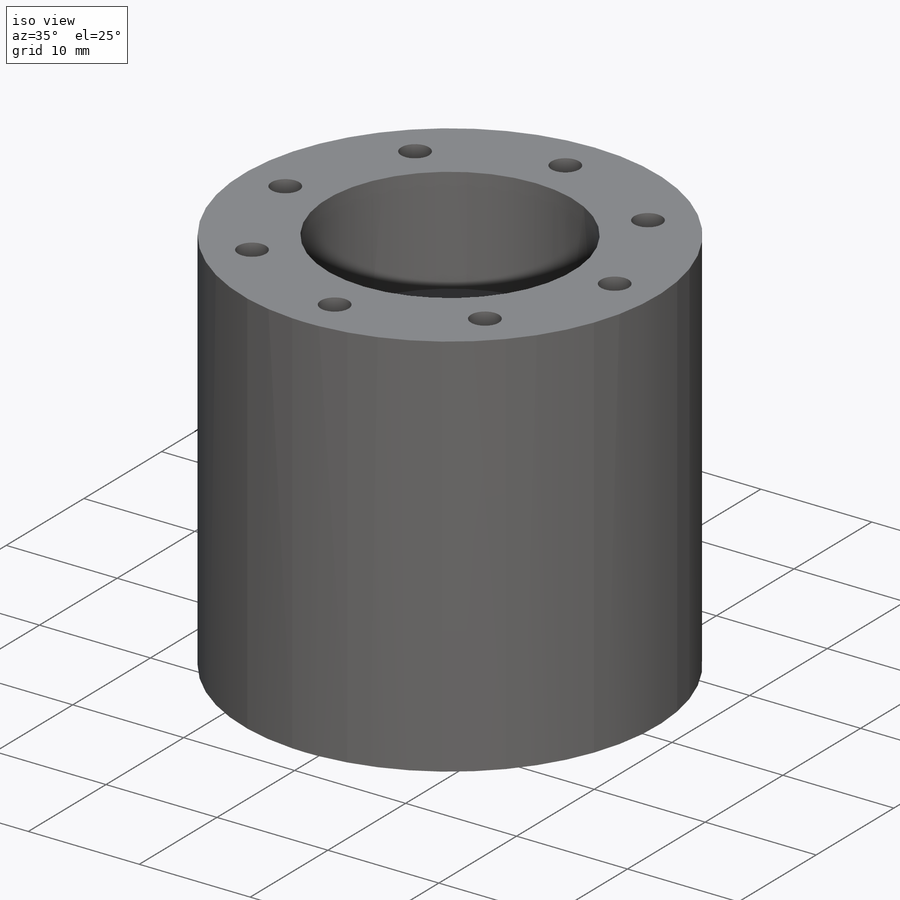
[diagram: iso view]
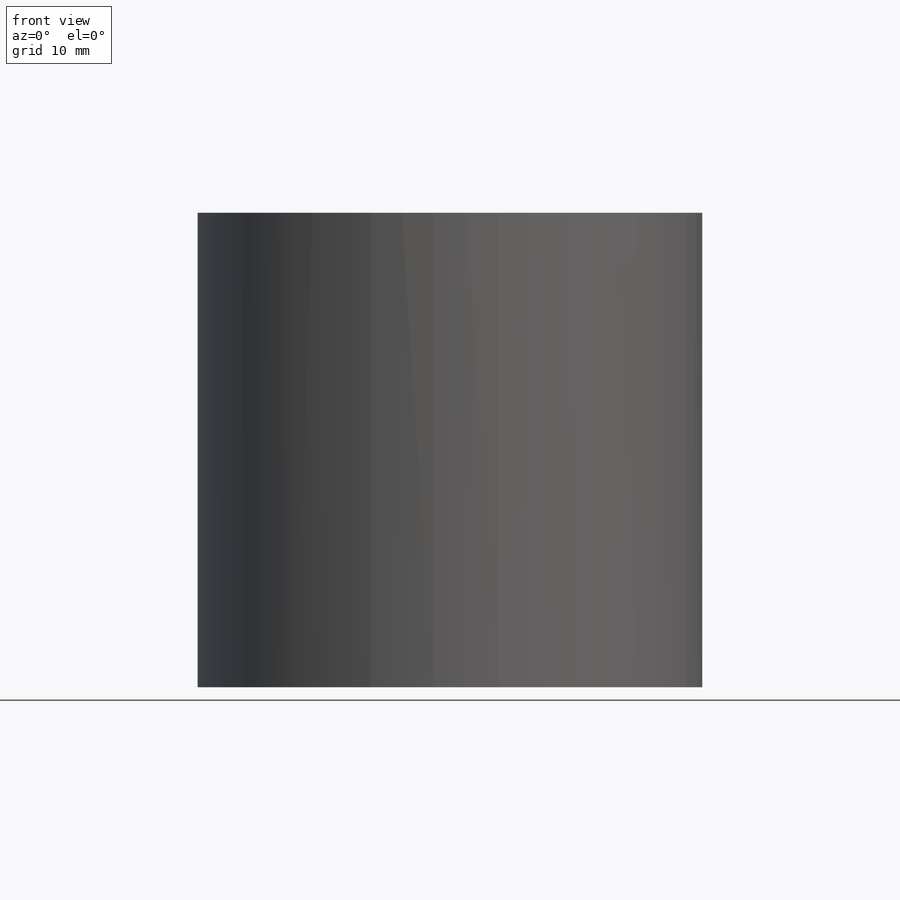
[diagram: front view]
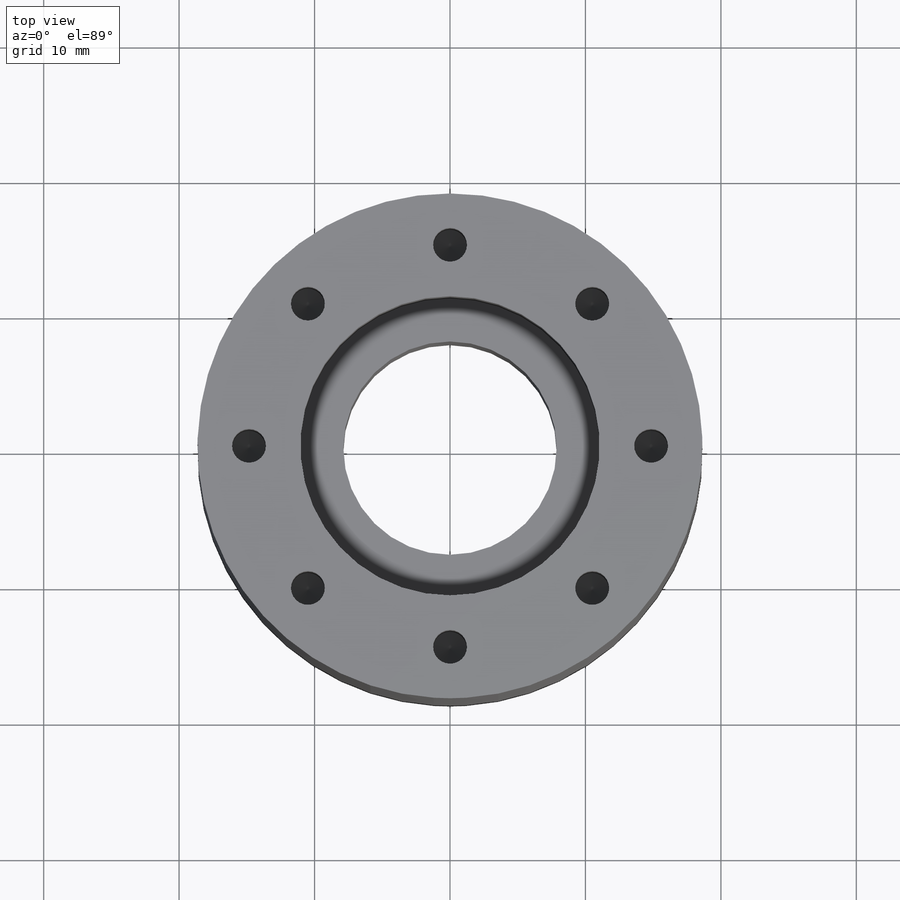
[diagram: top view]
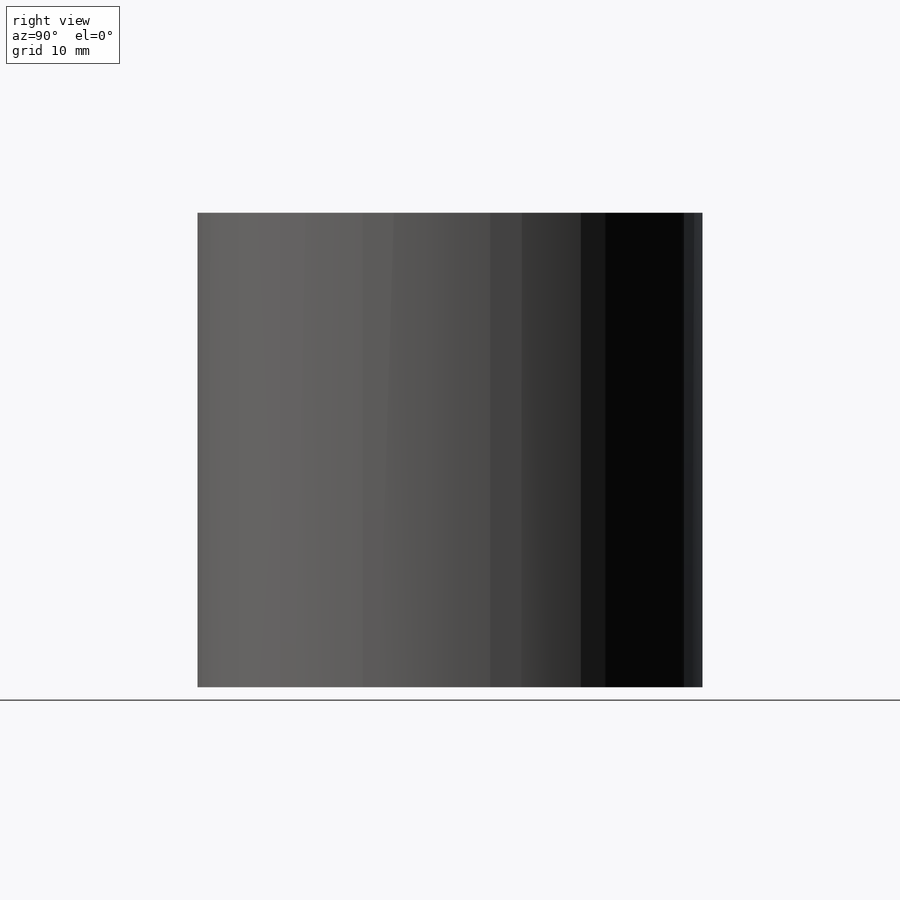
[diagram: right view]
SOLIDWORKS PART (.sldprt)
format: sldprt  version: not decoded by parser v0  size: 439,808 bytes
history: native  units: mm
features: thread x16, sketch x12, cut_extrude x3, hole x2, plane x2, material x1, extrude x1 (+13 scaffold rows collapsed)
feature tree (50):
  scaffold x13  (default folders/planes/origin — collapsed)
  material  "Material <not specified>"
  sketch  "Body Sketch"  dims[D1=37.275mm]
  extrude  "Body Extrude"  Depth=35.03125mm
  sketch  "Bearing Pocket Sketch"  dims[D1=22.098mm]
  cut_extrude  "Bearing Pocket Cut 1"  Depth=9.525mm
  cut_extrude  "Bearing Pocket Cut 2"  [1 undecoded]
  sketch  "Bearing Pocket Sketch<2>"  dims[D1=9.525mm]
  sketch  "Bore Sketch"  dims[D1=3.175mm]
  cut_extrude  "Bore Cut"  [1 undecoded]
  sketch  "Mounting Hole Sketch 1"  dims[c1.D1=~14.84325mm c1.D3=7.5885mm c2.D1=~14.843252mm c2.D2=8.0]
  hole  "M3x0.5 Tapped Hole1"  Diameter=2.5mm Depth=7.50062mm
  sketch  "3DSketch3"
  sketch  "Sketch8"  dims[hole-wizard template sketch: 47 standard entries collapsed; hole parameters kept: c15.Tap Drill Depth=~7.50062mm c15.D3=~14.816244mm c15.Drill Angle=118.0deg]
  thread  "Hole Thread3"  Diameter=5.99948mm  [1 undecoded]
  thread  "Hole Thread4"  Diameter=5.99948mm  [1 undecoded]
  thread  "Hole Thread5"  Diameter=5.99948mm  [1 undecoded]
  thread  "Hole Thread6"  Diameter=5.99948mm  [1 undecoded]
  thread  "Hole Thread7"  Diameter=5.99948mm  [1 undecoded]
  thread  "Hole Thread8"  Diameter=5.99948mm  [1 undecoded]
  thread  "Hole Thread9"  Diameter=5.99948mm  [1 undecoded]
  thread  "Hole Thread10"  Diameter=5.99948mm  [1 undecoded]
  sketch  "Mounting Hole Sketch 2"  dims[D1=~14.843252mm D2=8.0]
  hole  "M3x0.5 Tapped Hole3"  Diameter=2.5mm Depth=7.50062mm
  sketch  "3DSketch4"
  sketch  "Sketch13"  dims[hole-wizard template sketch: 47 standard entries collapsed; hole parameters kept: c15.Tap Drill Depth=~7.50062mm c15.D3=~14.816244mm c15.Drill Angle=118.0deg]
  thread  "Hole Thread27"  Diameter=5.99948mm  [1 undecoded]
  thread  "Hole Thread28"  Diameter=5.99948mm  [1 undecoded]
  thread  "Hole Thread29"  Diameter=5.99948mm  [1 undecoded]
  thread  "Hole Thread30"  Diameter=5.99948mm  [1 undecoded]
  thread  "Hole Thread31"  Diameter=5.99948mm  [1 undecoded]
  thread  "Hole Thread32"  Diameter=5.99948mm  [1 undecoded]
  thread  "Hole Thread33"  Diameter=5.99948mm  [1 undecoded]
  thread  "Hole Thread34"  Diameter=5.99948mm  [1 undecoded]
  plane  "Cylinder Tanget Plane"
  sketch  "Cylinder Center Point Sketch"  dims[D1=~56.332049mm]
  plane  "Cylinder Cross Section Plane"
  sketch  "Cylinder Circumference Sketch"
decode coverage: 29 of 34 modeling features carry decoded parameters
note: ~ marks probable driven/reference dimensions
note: 18 parameter values undecoded
note: suppression state not decoded; provenance and decode notes live in map.json
